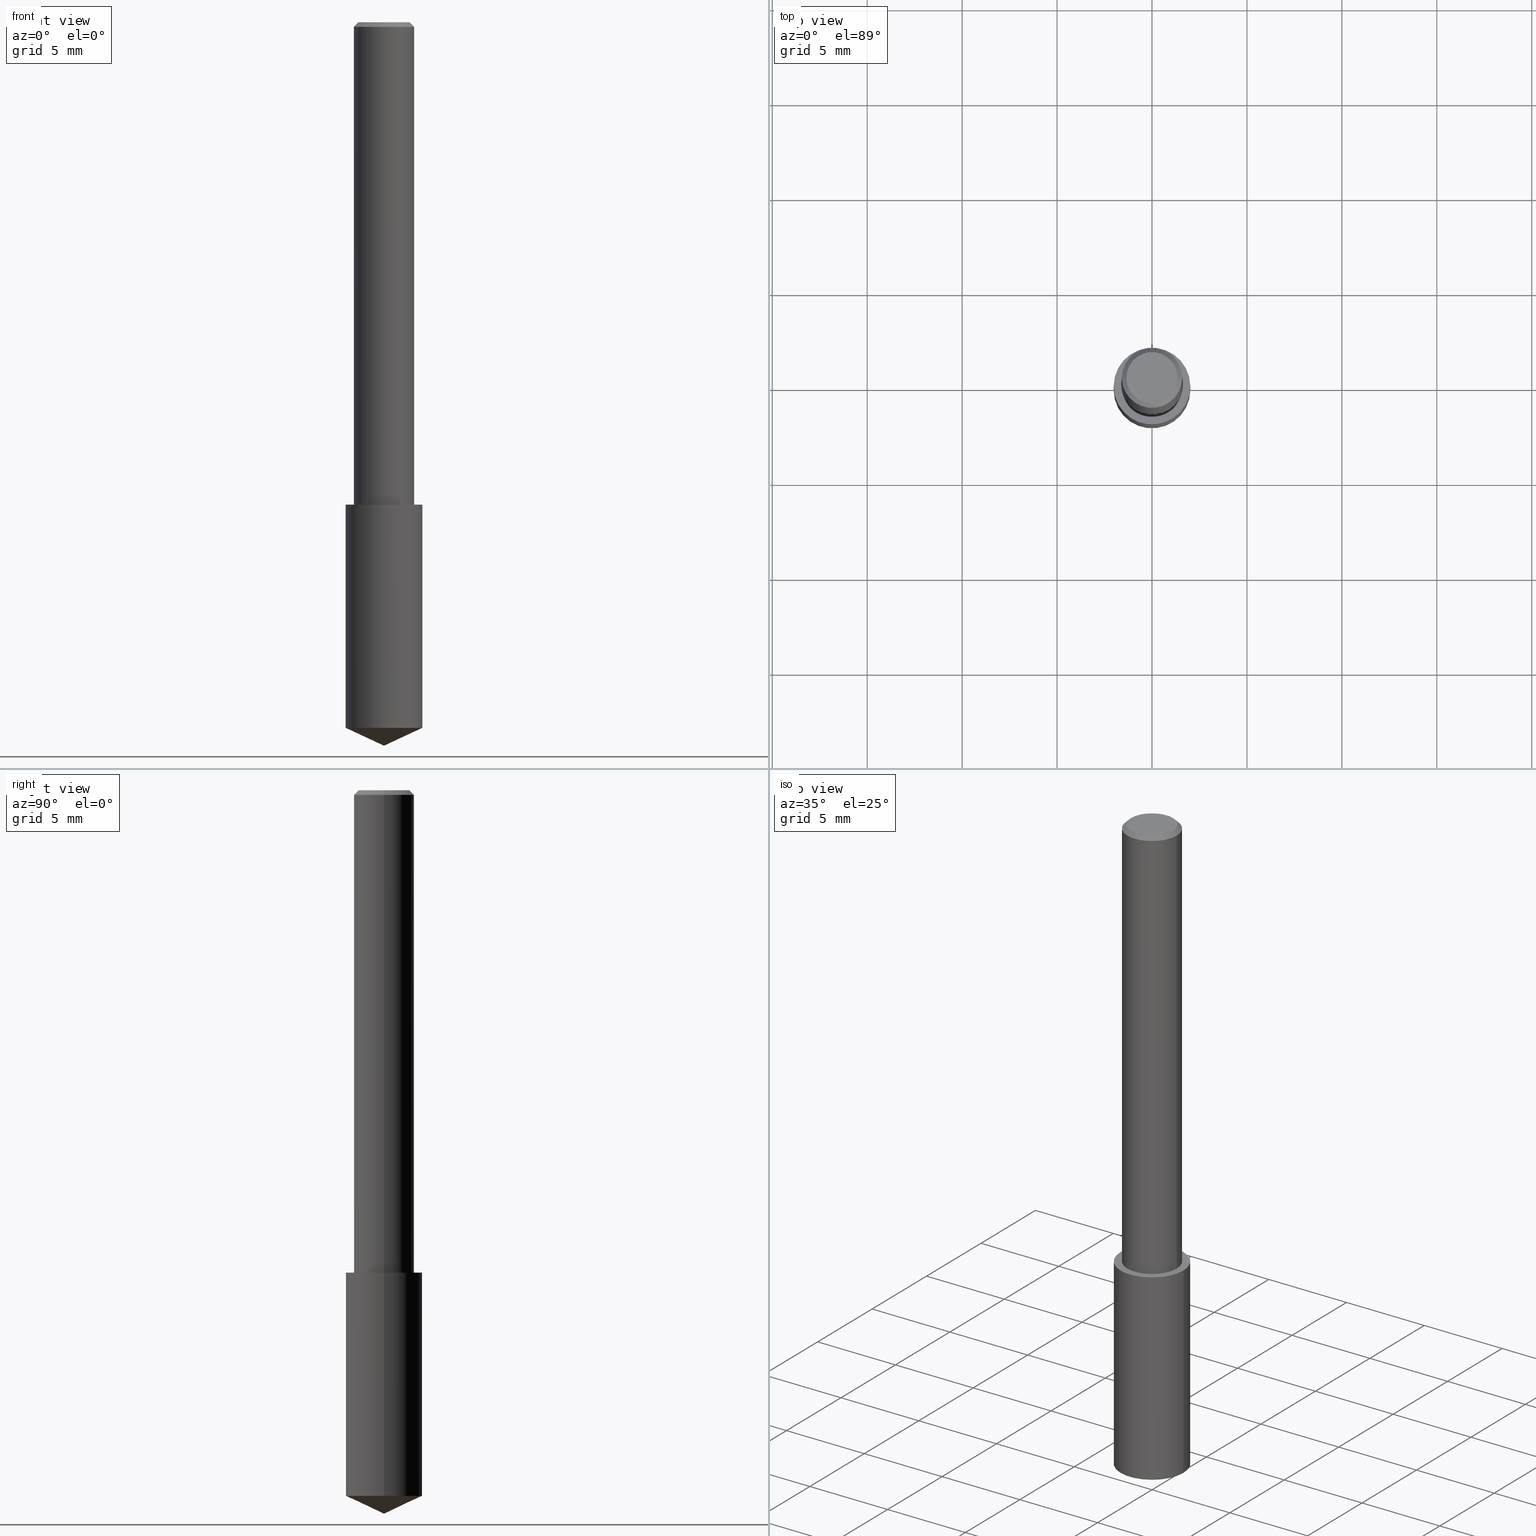
[diagram: canonical four-view strip — front | top / right | iso, engineering-drawing reading convention]
A machine part, canonical four-view strip (front | top / right | iso — engineering-drawing reading convention). The complete STEP part file that produces these views, byte-faithful:
ISO-10303-21;
HEADER;
FILE_DESCRIPTION (( 'STEP AP203' ),
    '1' );
FILE_NAME ('06097.STEP',
    '2024-04-30T18:20:19',
    ( '' ),
    ( '' ),
    'SwSTEP 2.0',
    'SolidWorks 2023',
    '' );
FILE_SCHEMA (( 'CONFIG_CONTROL_DESIGN' ));
ENDSEC;

DATA;
#1 = VERTEX_POINT ( 'NONE', #251 ) ;
#2 = APPROVAL ( #23, 'UNSPECIFIED' ) ;
#3 =( LENGTH_UNIT ( ) NAMED_UNIT ( * ) SI_UNIT ( $, .METRE. ) );
#4 = VERTEX_POINT ( 'NONE', #175 ) ;
#5 = CONICAL_SURFACE ( 'NONE', #87, 84.42940631927402251, 1.134464013796314452 ) ;
#6 = CARTESIAN_POINT ( 'NONE',  ( 3.668203209277704895E-29, -5.237222008264718177E-15, -1.500000000000000222 ) ) ;
#7 = EDGE_CURVE ( 'NONE', #297, #228, #116, .T. ) ;
#8 = CARTESIAN_POINT ( 'NONE',  ( 0.05312499999999999861, -4.129888592719939842E-16, 3.061617000609493422E-21 ) ) ;
#9 = APPROVAL_ROLE ( '' ) ;
#10 = DIRECTION ( 'NONE',  ( -2.445468806185136597E-29, 3.491481338843145583E-15, 1.000000000000000000 ) ) ;
#11 = VECTOR ( 'NONE', #110, 39.37007874015748854 ) ;
#12 = APPROVAL_STATUS ( 'not_yet_approved' ) ;
#13 = DIRECTION ( 'NONE',  ( -0.7071067811865453523, 2.468850131082234184E-15, -0.7071067811865496822 ) ) ;
#14 = DIRECTION ( 'NONE',  ( 1.000000000000000000, -6.982962677686266711E-15, 4.876176628004948512E-29 ) ) ;
#15 = PERSON_AND_ORGANIZATION ( #174, #107 ) ;
#16 = EDGE_CURVE ( 'NONE', #237, #63, #312, .T. ) ;
#17 = SHAPE_DEFINITION_REPRESENTATION ( #319, #167 ) ;
#18 = CARTESIAN_POINT ( 'NONE',  ( 2.445468806185137438E-29, -3.491481338843146371E-15, -1.000000000000000222 ) ) ;
#19 = PERSON_AND_ORGANIZATION ( #174, #107 ) ;
#20 = AXIS2_PLACEMENT_3D ( 'NONE', #278, #338, #170 ) ;
#21 = ORIENTED_EDGE ( 'NONE', *, *, #183, .F. ) ;
#22 = EDGE_CURVE ( 'NONE', #4, #314, #318, .T. ) ;
#23 = APPROVAL_STATUS ( 'not_yet_approved' ) ;
#24 = CIRCLE ( 'NONE', #236, 0.07950000000000000122 ) ;
#25 = EDGE_LOOP ( 'NONE', ( #36, #115 ) ) ;
#26 = DIRECTION ( 'NONE',  ( 1.000000000000000000, -6.982962677686265922E-15, 0.000000000000000000 ) ) ;
#27 = ORIENTED_EDGE ( 'NONE', *, *, #325, .F. ) ;
#28 = CC_DESIGN_PERSON_AND_ORGANIZATION_ASSIGNMENT ( #44, #310, ( #295 ) ) ;
#29 = EDGE_LOOP ( 'NONE', ( #46, #225, #101, #257 ) ) ;
#30 = AXIS2_PLACEMENT_3D ( 'NONE', #62, #94, #126 ) ;
#31 = DIRECTION ( 'NONE',  ( -1.000000000000000000, 6.982962677686265922E-15, -4.876176775795935793E-29 ) ) ;
#32 = CALENDAR_DATE ( 2024, 30, 4 ) ;
#33 = CARTESIAN_POINT ( 'NONE',  ( -0.07950000000000000122, -4.542906226650117336E-15, -1.462928541176677699 ) ) ;
#34 = AXIS2_PLACEMENT_3D ( 'NONE', #109, #213, #320 ) ;
#35 = VECTOR ( 'NONE', #75, 39.37007874015748143 ) ;
#36 = ORIENTED_EDGE ( 'NONE', *, *, #83, .T. ) ;
#37 = DIRECTION ( 'NONE',  ( -2.445468806185136597E-29, 3.491481338843145583E-15, 1.000000000000000000 ) ) ;
#38 = ORIENTED_EDGE ( 'NONE', *, *, #22, .T. ) ;
#39 = CALENDAR_DATE ( 2024, 30, 4 ) ;
#40 = DIRECTION ( 'NONE',  ( -2.445468806185136597E-29, 3.491481338843145583E-15, 1.000000000000000000 ) ) ;
#41 = VECTOR ( 'NONE', #299, 39.37007874015748143 ) ;
#42 = CC_DESIGN_APPROVAL ( #2, ( #216 ) ) ;
#43 = FACE_OUTER_BOUND ( 'NONE', #233, .T. ) ;
#44 = PERSON_AND_ORGANIZATION ( #174, #107 ) ;
#45 = CYLINDRICAL_SURFACE ( 'NONE', #260, 0.07950000000000000122 ) ;
#46 = ORIENTED_EDGE ( 'NONE', *, *, #188, .F. ) ;
#47 = CIRCLE ( 'NONE', #246, 0.06250000000000012490 ) ;
#48 = EDGE_CURVE ( 'NONE', #297, #237, #81, .T. ) ;
#49 = EDGE_LOOP ( 'NONE', ( #258, #210, #163, #156 ) ) ;
#50 =( NAMED_UNIT ( * ) PLANE_ANGLE_UNIT ( ) SI_UNIT ( $, .RADIAN. ) );
#51 = AXIS2_PLACEMENT_3D ( 'NONE', #64, #171, #281 ) ;
#52 = CARTESIAN_POINT ( 'NONE',  ( 2.292627005798580623E-31, -3.273263755165470184E-17, -0.009375000000000060368 ) ) ;
#53 = ORIENTED_EDGE ( 'NONE', *, *, #102, .F. ) ;
#54 = EDGE_CURVE ( 'NONE', #222, #149, #157, .T. ) ;
#55 = AXIS2_PLACEMENT_3D ( 'NONE', #328, #332, #89 ) ;
#56 = CC_DESIGN_PERSON_AND_ORGANIZATION_ASSIGNMENT ( #298, #57, ( #216 ) ) ;
#57 = PERSON_AND_ORGANIZATION_ROLE ( 'classification_officer' ) ;
#58 = PERSON_AND_ORGANIZATION ( #174, #107 ) ;
#59 = EDGE_CURVE ( 'NONE', #314, #4, #326, .T. ) ;
#60 = DIRECTION ( 'NONE',  ( 1.000000000000000000, -6.982962677686265922E-15, 0.000000000000000000 ) ) ;
#61 = DIRECTION ( 'NONE',  ( -2.445468806185136597E-29, 3.491481338843145583E-15, 1.000000000000000000 ) ) ;
#62 = CARTESIAN_POINT ( 'NONE',  ( 0.000000000000000000, 0.000000000000000000, 0.000000000000000000 ) ) ;
#63 = VERTEX_POINT ( 'NONE', #230 ) ;
#64 = CARTESIAN_POINT ( 'NONE',  ( 2.292627005798580623E-31, -3.273263755165470184E-17, -0.009375000000000060368 ) ) ;
#65 = EDGE_CURVE ( 'NONE', #71, #235, #165, .T. ) ;
#66 = DIRECTION ( 'NONE',  ( 1.000000000000000000, -6.982962677686266711E-15, 0.000000000000000000 ) ) ;
#67 = AXIS2_PLACEMENT_3D ( 'NONE', #103, #190, #294 ) ;
#68 = AXIS2_PLACEMENT_3D ( 'NONE', #138, #267, #137 ) ;
#69 = CARTESIAN_POINT ( 'NONE',  ( -0.06250000000000012490, -1.318017778347335489E-15, -1.000000000000000222 ) ) ;
#70 = CARTESIAN_POINT ( 'NONE',  ( 0.07950000000000000122, -4.046626871719204622E-15, -1.000000000000000222 ) ) ;
#71 = VERTEX_POINT ( 'NONE', #117 ) ;
#72 = CC_DESIGN_APPROVAL ( #95, ( #88 ) ) ;
#73 = ORIENTED_EDGE ( 'NONE', *, *, #325, .T. ) ;
#74 = FACE_OUTER_BOUND ( 'NONE', #127, .T. ) ;
#75 = DIRECTION ( 'NONE',  ( 0.7071067811865453523, -7.319954787623248157E-15, -0.7071067811865496822 ) ) ;
#76 = ORIENTED_EDGE ( 'NONE', *, *, #54, .F. ) ;
#77 = ADVANCED_FACE ( 'NONE', ( #280 ), #122, .F. ) ;
#78 = CARTESIAN_POINT ( 'NONE',  ( 0.06250000000000000000, -4.615137624123753937E-16, -0.009375000000000060368 ) ) ;
#79 = ADVANCED_FACE ( 'NONE', ( #43 ), #45, .T. ) ;
#80 = CC_DESIGN_PERSON_AND_ORGANIZATION_ASSIGNMENT ( #217, #84, ( #88 ) ) ;
#81 = CIRCLE ( 'NONE', #98, 0.07950000000000000122 ) ;
#82 = CARTESIAN_POINT ( 'NONE',  ( -0.06250000000000006939, 4.440892098500631092E-16, -3.074334431409319267E-30 ) ) ;
#83 = EDGE_CURVE ( 'NONE', #63, #228, #106, .T. ) ;
#84 = PERSON_AND_ORGANIZATION_ROLE ( 'creator' ) ;
#85 = FACE_OUTER_BOUND ( 'NONE', #49, .T. ) ;
#86 = DIRECTION ( 'NONE',  ( -2.445468806185136597E-29, 3.491481338843145583E-15, 1.000000000000000000 ) ) ;
#87 = AXIS2_PLACEMENT_3D ( 'NONE', #144, #333, #66 ) ;
#88 = PRODUCT_DEFINITION_FORMATION_WITH_SPECIFIED_SOURCE ( 'ANY', '', #295, .NOT_KNOWN. ) ;
#89 = DIRECTION ( 'NONE',  ( 1.000000000000000000, -6.982962677686264344E-15, 0.000000000000000000 ) ) ;
#90 = DIRECTION ( 'NONE',  ( 1.000000000000000000, -6.982962677686264344E-15, 0.000000000000000000 ) ) ;
#91 = EDGE_CURVE ( 'NONE', #235, #71, #211, .T. ) ;
#92 = DIRECTION ( 'NONE',  ( -2.445468806185136597E-29, 3.491481338843145583E-15, 1.000000000000000000 ) ) ;
#93 = DIRECTION ( 'NONE',  ( -2.445468806185136877E-29, 3.491481338843145188E-15, 1.000000000000000000 ) ) ;
#94 = DIRECTION ( 'NONE',  ( 0.000000000000000000, 0.000000000000000000, 1.000000000000000000 ) ) ;
#95 = APPROVAL ( #12, 'UNSPECIFIED' ) ;
#96 = APPROVAL_DATE_TIME ( #234, #2 ) ;
#97 = LINE ( 'NONE', #284, #197 ) ;
#98 = AXIS2_PLACEMENT_3D ( 'NONE', #146, #92, #219 ) ;
#99 = EDGE_LOOP ( 'NONE', ( #286, #180 ) ) ;
#100 = MANIFOLD_SOLID_BREP ( 'Body-Move/Copy2[1]', #215 ) ;
#101 = ORIENTED_EDGE ( 'NONE', *, *, #120, .T. ) ;
#102 = EDGE_CURVE ( 'NONE', #71, #314, #97, .T. ) ;
#103 = CARTESIAN_POINT ( 'NONE',  ( 2.445468806185137438E-29, -3.491481338843146371E-15, -1.000000000000000222 ) ) ;
#104 = EDGE_LOOP ( 'NONE', ( #131, #241, #261 ) ) ;
#105 = DIRECTION ( 'NONE',  ( -1.000000000000000000, 6.982962677686266711E-15, 0.000000000000000000 ) ) ;
#106 = CIRCLE ( 'NONE', #273, 0.07950000000000000122 ) ;
#107 = ORGANIZATION ( 'UNSPECIFIED', 'UNSPECIFIED', '' ) ;
#108 = ADVANCED_FACE ( 'NONE', ( #226 ), #119, .T. ) ;
#109 = CARTESIAN_POINT ( 'NONE',  ( 2.292627005798580623E-31, -3.273263755165470184E-17, -0.009375000000000060368 ) ) ;
#110 = DIRECTION ( 'NONE',  ( -0.9063077870366499367, 7.915267918739013053E-15, 0.4226182617406991082 ) ) ;
#111 = DIRECTION ( 'NONE',  ( 0.9063077870366499367, -4.853149677051380368E-15, 0.4226182617406991082 ) ) ;
#112 = DATE_TIME_ROLE ( 'creation_date' ) ;
#113 = CARTESIAN_POINT ( 'NONE',  ( 0.06250000000000012490, -3.927916506198539224E-15, -1.000000000000000222 ) ) ;
#114 = CALENDAR_DATE ( 2024, 30, 4 ) ;
#115 = ORIENTED_EDGE ( 'NONE', *, *, #183, .T. ) ;
#116 = LINE ( 'NONE', #207, #308 ) ;
#117 = CARTESIAN_POINT ( 'NONE',  ( -0.05312499999999999861, 3.873362110279099094E-16, 3.061616995216862494E-21 ) ) ;
#118 = APPROVAL_ROLE ( '' ) ;
#119 = CONICAL_SURFACE ( 'NONE', #313, 84.42940631927402251, 1.134464013796314452 ) ;
#120 = EDGE_CURVE ( 'NONE', #222, #4, #252, .T. ) ;
#121 = FACE_OUTER_BOUND ( 'NONE', #29, .T. ) ;
#122 = PLANE ( 'NONE',  #20 ) ;
#123 = ADVANCED_FACE ( 'NONE', ( #121 ), #330, .T. ) ;
#124 = CARTESIAN_POINT ( 'NONE',  ( 2.445468806185137438E-29, -3.491481338843146371E-15, -1.000000000000000222 ) ) ;
#125 = PERSON_AND_ORGANIZATION_ROLE ( 'creator' ) ;
#126 = DIRECTION ( 'NONE',  ( 1.000000000000000000, 0.000000000000000000, 0.000000000000000000 ) ) ;
#127 = EDGE_LOOP ( 'NONE', ( #27, #189, #169, #300 ) ) ;
#128 = CALENDAR_DATE ( 2024, 30, 4 ) ;
#129 = ORIENTED_EDGE ( 'NONE', *, *, #48, .T. ) ;
#130 = AXIS2_PLACEMENT_3D ( 'NONE', #52, #134, #105 ) ;
#131 = ORIENTED_EDGE ( 'NONE', *, *, #316, .F. ) ;
#132 = CC_DESIGN_DATE_AND_TIME_ASSIGNMENT ( #147, #112, ( #259 ) ) ;
#133 = ORIENTED_EDGE ( 'NONE', *, *, #83, .F. ) ;
#134 = DIRECTION ( 'NONE',  ( 2.445468806185136597E-29, -3.491481338843145583E-15, -1.000000000000000000 ) ) ;
#135 = VECTOR ( 'NONE', #218, 39.37007874015748143 ) ;
#136 = CARTESIAN_POINT ( 'NONE',  ( 3.668203209277704895E-29, -5.237222008264718177E-15, -1.500000000000000222 ) ) ;
#137 = DIRECTION ( 'NONE',  ( 1.000000000000000000, -6.982962677686266711E-15, 4.876176775795935793E-29 ) ) ;
#138 = CARTESIAN_POINT ( 'NONE',  ( 0.000000000000000000, 0.000000000000000000, 0.000000000000000000 ) ) ;
#139 = ADVANCED_FACE ( 'NONE', ( #148 ), #5, .T. ) ;
#140 = VECTOR ( 'NONE', #111, 39.37007874015748854 ) ;
#141 = CARTESIAN_POINT ( 'NONE',  ( 2.445468806185136877E-29, -3.491481338843145977E-15, -1.000000000000000222 ) ) ;
#142 = APPROVAL ( #250, 'UNSPECIFIED' ) ;
#143 = ADVANCED_FACE ( 'NONE', ( #283 ), #150, .F. ) ;
#144 = CARTESIAN_POINT ( 'NONE',  ( -9.261009624683002666E-28, 1.322226732217803884E-13, 37.87007874015748143 ) ) ;
#145 = APPLICATION_PROTOCOL_DEFINITION ( 'international standard', 'config_control_design', 1994, #306 ) ;
#146 = CARTESIAN_POINT ( 'NONE',  ( 3.577546113125493267E-29, -5.107787701579397091E-15, -1.462928541176677699 ) ) ;
#147 = DATE_AND_TIME ( #39, #263 ) ;
#148 = FACE_OUTER_BOUND ( 'NONE', #200, .T. ) ;
#149 = VERTEX_POINT ( 'NONE', #69 ) ;
#150 = PLANE ( 'NONE',  #155 ) ;
#151 = CARTESIAN_POINT ( 'NONE',  ( 0.06250000000000006939, -4.364351673553921624E-16, 3.047610484872463374E-30 ) ) ;
#152 = APPLICATION_PROTOCOL_DEFINITION ( 'international standard', 'config_control_design', 1994, #253 ) ;
#153 = ORIENTED_EDGE ( 'NONE', *, *, #91, .F. ) ;
#154 = ORIENTED_EDGE ( 'NONE', *, *, #7, .F. ) ;
#155 = AXIS2_PLACEMENT_3D ( 'NONE', #335, #249, #255 ) ;
#156 = ORIENTED_EDGE ( 'NONE', *, *, #120, .F. ) ;
#157 = CIRCLE ( 'NONE', #55, 0.06250000000000012490 ) ;
#158 = EDGE_CURVE ( 'NONE', #149, #222, #47, .T. ) ;
#159 = CYLINDRICAL_SURFACE ( 'NONE', #67, 0.07950000000000000122 ) ;
#160 = LINE ( 'NONE', #78, #35 ) ;
#161 = AXIS2_PLACEMENT_3D ( 'NONE', #305, #309, #168 ) ;
#162 = LOCAL_TIME ( 14, 20, 19.00000000000000000, #227 ) ;
#163 = ORIENTED_EDGE ( 'NONE', *, *, #22, .F. ) ;
#164 = PERSON_AND_ORGANIZATION ( #174, #107 ) ;
#165 = CIRCLE ( 'NONE', #323, 0.05312499999999999861 ) ;
#166 = APPROVAL_DATE_TIME ( #247, #95 ) ;
#167 = ADVANCED_BREP_SHAPE_REPRESENTATION ( '06097', ( #100, #329, #30 ), #212 ) ;
#168 = DIRECTION ( 'NONE',  ( 1.000000000000000000, -6.982962677686266711E-15, 4.876176775795935793E-29 ) ) ;
#169 = ORIENTED_EDGE ( 'NONE', *, *, #102, .T. ) ;
#170 = DIRECTION ( 'NONE',  ( -1.000000000000000000, 6.982962677686265922E-15, -4.876176775795935793E-29 ) ) ;
#171 = DIRECTION ( 'NONE',  ( -2.445468806185136597E-29, 3.491481338843145583E-15, 1.000000000000000000 ) ) ;
#172 = CARTESIAN_POINT ( 'NONE',  ( -7.487088864773345706E-50, 1.068957861474247695E-35, 3.061616997868395197E-21 ) ) ;
#173 = CONICAL_SURFACE ( 'NONE', #34, 0.06250000000000000000, 0.7853981633974452814 ) ;
#174 = PERSON ( 'UNSPECIFIED', 'UNSPECIFIED', 'UNSPECIFIED', ('UNSPECIFIED'), ('UNSPECIFIED'), ('UNSPECIFIED') ) ;
#175 = CARTESIAN_POINT ( 'NONE',  ( 0.06250000000000000000, -4.691678049070463404E-16, -0.009375000000000060368 ) ) ;
#176 = CARTESIAN_POINT ( 'NONE',  ( -7.487088864773345706E-50, 1.068957861474247695E-35, 3.061616997868395197E-21 ) ) ;
#177 = CARTESIAN_POINT ( 'NONE',  ( 2.292627005798580623E-31, -3.273263755165470184E-17, -0.009375000000000060368 ) ) ;
#178 = PERSON_AND_ORGANIZATION ( #174, #107 ) ;
#179 = ORIENTED_EDGE ( 'NONE', *, *, #158, .F. ) ;
#180 = ORIENTED_EDGE ( 'NONE', *, *, #91, .T. ) ;
#181 = AXIS2_PLACEMENT_3D ( 'NONE', #172, #254, #223 ) ;
#182 = LOCAL_TIME ( 14, 20, 19.00000000000000000, #270 ) ;
#183 = EDGE_CURVE ( 'NONE', #228, #63, #220, .T. ) ;
#184 = LENGTH_MEASURE_WITH_UNIT ( LENGTH_MEASURE( 0.02539999999999999897 ), #3 );
#185 = CC_DESIGN_PERSON_AND_ORGANIZATION_ASSIGNMENT ( #164, #214, ( #88 ) ) ;
#186 = PRODUCT_RELATED_PRODUCT_CATEGORY ( 'detail', '', ( #295 ) ) ;
#187 = DESIGN_CONTEXT ( 'detailed design', #306, 'design' ) ;
#188 = EDGE_CURVE ( 'NONE', #149, #314, #322, .T. ) ;
#189 = ORIENTED_EDGE ( 'NONE', *, *, #65, .F. ) ;
#190 = DIRECTION ( 'NONE',  ( -2.445468806185136597E-29, 3.491481338843145583E-15, 1.000000000000000000 ) ) ;
#191 = DIRECTION ( 'NONE',  ( -2.445468806185136597E-29, 3.491481338843145583E-15, 1.000000000000000000 ) ) ;
#192 = CYLINDRICAL_SURFACE ( 'NONE', #68, 0.06250000000000006939 ) ;
#193 = CONICAL_SURFACE ( 'NONE', #130, 0.06250000000000000000, 0.7853981633974452814 ) ;
#194 = LINE ( 'NONE', #136, #11 ) ;
#195 = CC_DESIGN_DATE_AND_TIME_ASSIGNMENT ( #276, #289, ( #216 ) ) ;
#196 = CARTESIAN_POINT ( 'NONE',  ( -3.743544432386672853E-50, 5.344789307371238476E-36, 1.530808498934197599E-21 ) ) ;
#197 = VECTOR ( 'NONE', #13, 39.37007874015748143 ) ;
#198 = DIRECTION ( 'NONE',  ( 1.000000000000000000, -6.982962677686266711E-15, 0.000000000000000000 ) ) ;
#199 = CARTESIAN_POINT ( 'NONE',  ( -9.261009624683002666E-28, 1.322226732217803884E-13, 37.87007874015748143 ) ) ;
#200 = EDGE_LOOP ( 'NONE', ( #290, #206, #307 ) ) ;
#201 = CARTESIAN_POINT ( 'NONE',  ( 2.445468806185136877E-29, -3.491481338843145977E-15, -1.000000000000000222 ) ) ;
#202 = AXIS2_PLACEMENT_3D ( 'NONE', #177, #304, #198 ) ;
#203 = DIRECTION ( 'NONE',  ( 1.000000000000000000, -6.982962677686266711E-15, 0.000000000000000000 ) ) ;
#204 = CALENDAR_DATE ( 2024, 30, 4 ) ;
#205 = CC_DESIGN_SECURITY_CLASSIFICATION ( #216, ( #88 ) ) ;
#206 = ORIENTED_EDGE ( 'NONE', *, *, #316, .T. ) ;
#207 = CARTESIAN_POINT ( 'NONE',  ( -0.07950000000000000122, -2.926599863913867011E-15, -1.000000000000000222 ) ) ;
#208 = EDGE_CURVE ( 'NONE', #1, #297, #194, .T. ) ;
#209 = CC_DESIGN_APPROVAL ( #142, ( #259 ) ) ;
#210 = ORIENTED_EDGE ( 'NONE', *, *, #188, .T. ) ;
#211 = CIRCLE ( 'NONE', #181, 0.05312499999999999861 ) ;
#212 =( GEOMETRIC_REPRESENTATION_CONTEXT ( 3 ) GLOBAL_UNCERTAINTY_ASSIGNED_CONTEXT ( ( #275 ) ) GLOBAL_UNIT_ASSIGNED_CONTEXT ( ( #292, #50, #238 ) ) REPRESENTATION_CONTEXT ( 'NONE', 'WORKASPACE' ) );
#213 = DIRECTION ( 'NONE',  ( 2.445468806185136597E-29, -3.491481338843145583E-15, -1.000000000000000000 ) ) ;
#214 = PERSON_AND_ORGANIZATION_ROLE ( 'design_supplier' ) ;
#215 = CLOSED_SHELL ( 'NONE', ( #240, #108, #139, #79, #77 ) ) ;
#216 = SECURITY_CLASSIFICATION ( '', '', #277 ) ;
#217 = PERSON_AND_ORGANIZATION ( #174, #107 ) ;
#218 = DIRECTION ( 'NONE',  ( -2.445468806185136877E-29, 3.491481338843145188E-15, 1.000000000000000000 ) ) ;
#219 = DIRECTION ( 'NONE',  ( 1.000000000000000000, -6.982962677686265922E-15, 0.000000000000000000 ) ) ;
#220 = CIRCLE ( 'NONE', #293, 0.07950000000000000122 ) ;
#221 = DIRECTION ( 'NONE',  ( -2.445468806185136597E-29, 3.491481338843145583E-15, 1.000000000000000000 ) ) ;
#222 = VERTEX_POINT ( 'NONE', #113 ) ;
#223 = DIRECTION ( 'NONE',  ( 1.000000000000000000, -6.982962677686266711E-15, 4.876176628004948512E-29 ) ) ;
#224 = MECHANICAL_CONTEXT ( 'NONE', #253, 'mechanical' ) ;
#225 = ORIENTED_EDGE ( 'NONE', *, *, #158, .T. ) ;
#226 = FACE_OUTER_BOUND ( 'NONE', #104, .T. ) ;
#227 = COORDINATED_UNIVERSAL_TIME_OFFSET ( 5, 0, .BEHIND. ) ;
#228 = VERTEX_POINT ( 'NONE', #321 ) ;
#229 = CLOSED_SHELL ( 'NONE', ( #285, #302, #143, #123, #265, #291 ) ) ;
#230 = CARTESIAN_POINT ( 'NONE',  ( 0.07950000000000000122, -4.046626871719203833E-15, -1.000000000000000222 ) ) ;
#231 = COORDINATED_UNIVERSAL_TIME_OFFSET ( 5, 0, .BEHIND. ) ;
#232 = LOCAL_TIME ( 14, 20, 19.00000000000000000, #324 ) ;
#233 = EDGE_LOOP ( 'NONE', ( #154, #129, #317, #21 ) ) ;
#234 = DATE_AND_TIME ( #128, #296 ) ;
#235 = VERTEX_POINT ( 'NONE', #8 ) ;
#236 = AXIS2_PLACEMENT_3D ( 'NONE', #339, #191, #26 ) ;
#237 = VERTEX_POINT ( 'NONE', #262 ) ;
#238 =( NAMED_UNIT ( * ) SI_UNIT ( $, .STERADIAN. ) SOLID_ANGLE_UNIT ( ) );
#239 = CC_DESIGN_PERSON_AND_ORGANIZATION_ASSIGNMENT ( #19, #125, ( #259 ) ) ;
#240 = ADVANCED_FACE ( 'NONE', ( #315 ), #159, .T. ) ;
#241 = ORIENTED_EDGE ( 'NONE', *, *, #208, .T. ) ;
#242 = FACE_OUTER_BOUND ( 'NONE', #336, .T. ) ;
#243 = LINE ( 'NONE', #6, #140 ) ;
#244 = CARTESIAN_POINT ( 'NONE',  ( -0.06250000000000000000, -1.318017778347336672E-15, -0.009375000000000060368 ) ) ;
#245 = PLANE ( 'NONE',  #282 ) ;
#246 = AXIS2_PLACEMENT_3D ( 'NONE', #18, #10, #90 ) ;
#247 = DATE_AND_TIME ( #114, #232 ) ;
#248 = DIRECTION ( 'NONE',  ( -2.445468806185136877E-29, 3.491481338843145188E-15, 1.000000000000000000 ) ) ;
#249 = DIRECTION ( 'NONE',  ( -2.438088387897960049E-29, 3.491481338843145188E-15, 1.000000000000000000 ) ) ;
#250 = APPROVAL_STATUS ( 'not_yet_approved' ) ;
#251 = CARTESIAN_POINT ( 'NONE',  ( 3.668203209277704895E-29, -5.237222008264718177E-15, -1.500000000000000222 ) ) ;
#252 = LINE ( 'NONE', #151, #287 ) ;
#253 = APPLICATION_CONTEXT ( 'configuration controlled 3d designs of mechanical parts and assemblies' ) ;
#254 = DIRECTION ( 'NONE',  ( -2.445468806185136597E-29, 3.491481338843145583E-15, 1.000000000000000000 ) ) ;
#255 = DIRECTION ( 'NONE',  ( 1.000000000000000000, -6.982962677686265922E-15, 4.876176775795935793E-29 ) ) ;
#256 = DATE_AND_TIME ( #204, #162 ) ;
#257 = ORIENTED_EDGE ( 'NONE', *, *, #59, .F. ) ;
#258 = ORIENTED_EDGE ( 'NONE', *, *, #54, .T. ) ;
#259 = PRODUCT_DEFINITION ( 'UNKNOWN', '', #88, #187 ) ;
#260 = AXIS2_PLACEMENT_3D ( 'NONE', #124, #40, #303 ) ;
#261 = ORIENTED_EDGE ( 'NONE', *, *, #340, .F. ) ;
#262 = CARTESIAN_POINT ( 'NONE',  ( 0.07950000000000000122, -5.662933234455454158E-15, -1.462928541176677699 ) ) ;
#263 = LOCAL_TIME ( 14, 20, 19.00000000000000000, #231 ) ;
#264 = ORIENTED_EDGE ( 'NONE', *, *, #340, .T. ) ;
#265 = ADVANCED_FACE ( 'NONE', ( #74 ), #193, .T. ) ;
#266 = DIMENSIONAL_EXPONENTS ( 1.000000000000000000, 0.000000000000000000, 0.000000000000000000, 0.000000000000000000, 0.000000000000000000, 0.000000000000000000, 0.000000000000000000 ) ;
#267 = DIRECTION ( 'NONE',  ( -2.445468806185136597E-29, 3.491481338843145583E-15, 1.000000000000000000 ) ) ;
#268 = APPROVAL_PERSON_ORGANIZATION ( #178, #2, #334 ) ;
#269 = FACE_OUTER_BOUND ( 'NONE', #99, .T. ) ;
#270 = COORDINATED_UNIVERSAL_TIME_OFFSET ( 5, 0, .BEHIND. ) ;
#271 = DIRECTION ( 'NONE',  ( 1.000000000000000000, -6.982962677686265922E-15, 0.000000000000000000 ) ) ;
#272 = DIRECTION ( 'NONE',  ( 2.438088387897960049E-29, -3.491481338843145188E-15, -1.000000000000000000 ) ) ;
#273 = AXIS2_PLACEMENT_3D ( 'NONE', #201, #37, #60 ) ;
#275 = UNCERTAINTY_MEASURE_WITH_UNIT (LENGTH_MEASURE( 1.000000000000000082E-05 ), #292, 'distance_accuracy_value', 'NONE');
#274 = APPROVAL_PERSON_ORGANIZATION ( #15, #142, #118 ) ;
#276 = DATE_AND_TIME ( #32, #182 ) ;
#277 = SECURITY_CLASSIFICATION_LEVEL ( 'unclassified' ) ;
#278 = CARTESIAN_POINT ( 'NONE',  ( 3.645241924478826794E-29, -1.773337946601470975E-15, -1.000000000000000222 ) ) ;
#279 = COORDINATED_UNIVERSAL_TIME_OFFSET ( 5, 0, .BEHIND. ) ;
#280 = FACE_OUTER_BOUND ( 'NONE', #25, .T. ) ;
#281 = DIRECTION ( 'NONE',  ( 1.000000000000000000, -6.982962677686266711E-15, 0.000000000000000000 ) ) ;
#282 = AXIS2_PLACEMENT_3D ( 'NONE', #196, #272, #31 ) ;
#283 = FACE_OUTER_BOUND ( 'NONE', #311, .T. ) ;
#284 = CARTESIAN_POINT ( 'NONE',  ( -0.06250000000000000000, 4.037025298037369984E-16, -0.009375000000000060368 ) ) ;
#285 = ADVANCED_FACE ( 'NONE', ( #242 ), #173, .T. ) ;
#286 = ORIENTED_EDGE ( 'NONE', *, *, #65, .T. ) ;
#287 = VECTOR ( 'NONE', #93, 39.37007874015748143 ) ;
#288 = ORIENTED_EDGE ( 'NONE', *, *, #16, .F. ) ;
#289 = DATE_TIME_ROLE ( 'classification_date' ) ;
#290 = ORIENTED_EDGE ( 'NONE', *, *, #208, .F. ) ;
#291 = ADVANCED_FACE ( 'NONE', ( #269 ), #245, .F. ) ;
#292 =( CONVERSION_BASED_UNIT ( 'INCH', #184 ) LENGTH_UNIT ( ) NAMED_UNIT ( #266 ) );
#293 = AXIS2_PLACEMENT_3D ( 'NONE', #141, #86, #271 ) ;
#294 = DIRECTION ( 'NONE',  ( 1.000000000000000000, -6.982962677686265922E-15, 0.000000000000000000 ) ) ;
#295 = PRODUCT ( '06097', '06097', '', ( #224 ) ) ;
#296 = LOCAL_TIME ( 14, 20, 19.00000000000000000, #279 ) ;
#297 = VERTEX_POINT ( 'NONE', #33 ) ;
#298 = PERSON_AND_ORGANIZATION ( #174, #107 ) ;
#299 = DIRECTION ( 'NONE',  ( -2.445468806185136877E-29, 3.491481338843145188E-15, 1.000000000000000000 ) ) ;
#300 = ORIENTED_EDGE ( 'NONE', *, *, #59, .T. ) ;
#301 = ORIENTED_EDGE ( 'NONE', *, *, #7, .T. ) ;
#302 = ADVANCED_FACE ( 'NONE', ( #85 ), #192, .T. ) ;
#303 = DIRECTION ( 'NONE',  ( 1.000000000000000000, -6.982962677686265922E-15, 0.000000000000000000 ) ) ;
#304 = DIRECTION ( 'NONE',  ( -2.445468806185136597E-29, 3.491481338843145583E-15, 1.000000000000000000 ) ) ;
#305 = CARTESIAN_POINT ( 'NONE',  ( 0.000000000000000000, 0.000000000000000000, 0.000000000000000000 ) ) ;
#306 = APPLICATION_CONTEXT ( 'configuration controlled 3d designs of mechanical parts and assemblies' ) ;
#307 = ORIENTED_EDGE ( 'NONE', *, *, #48, .F. ) ;
#308 = VECTOR ( 'NONE', #248, 39.37007874015748143 ) ;
#309 = DIRECTION ( 'NONE',  ( -2.445468806185136597E-29, 3.491481338843145583E-15, 1.000000000000000000 ) ) ;
#310 = PERSON_AND_ORGANIZATION_ROLE ( 'design_owner' ) ;
#311 = EDGE_LOOP ( 'NONE', ( #76, #179 ) ) ;
#312 = LINE ( 'NONE', #70, #135 ) ;
#313 = AXIS2_PLACEMENT_3D ( 'NONE', #199, #221, #203 ) ;
#314 = VERTEX_POINT ( 'NONE', #244 ) ;
#315 = FACE_OUTER_BOUND ( 'NONE', #337, .T. ) ;
#316 = EDGE_CURVE ( 'NONE', #1, #237, #243, .T. ) ;
#317 = ORIENTED_EDGE ( 'NONE', *, *, #16, .T. ) ;
#318 = CIRCLE ( 'NONE', #202, 0.06250000000000000000 ) ;
#319 = PRODUCT_DEFINITION_SHAPE ( 'NONE', 'NONE',  #259 ) ;
#320 = DIRECTION ( 'NONE',  ( -1.000000000000000000, 6.982962677686266711E-15, 0.000000000000000000 ) ) ;
#321 = CARTESIAN_POINT ( 'NONE',  ( -0.07950000000000000122, -3.734753045281991384E-15, -1.000000000000000222 ) ) ;
#322 = LINE ( 'NONE', #82, #41 ) ;
#323 = AXIS2_PLACEMENT_3D ( 'NONE', #176, #61, #14 ) ;
#324 = COORDINATED_UNIVERSAL_TIME_OFFSET ( 5, 0, .BEHIND. ) ;
#325 = EDGE_CURVE ( 'NONE', #235, #4, #160, .T. ) ;
#326 = CIRCLE ( 'NONE', #51, 0.06250000000000000000 ) ;
#327 = APPROVAL_PERSON_ORGANIZATION ( #58, #95, #9 ) ;
#328 = CARTESIAN_POINT ( 'NONE',  ( 2.445468806185137438E-29, -3.491481338843146371E-15, -1.000000000000000222 ) ) ;
#329 = MANIFOLD_SOLID_BREP ( 'Body-Move/Copy2[2]', #229 ) ;
#330 = CYLINDRICAL_SURFACE ( 'NONE', #161, 0.06250000000000006939 ) ;
#331 = APPROVAL_DATE_TIME ( #256, #142 ) ;
#332 = DIRECTION ( 'NONE',  ( -2.445468806185136597E-29, 3.491481338843145583E-15, 1.000000000000000000 ) ) ;
#333 = DIRECTION ( 'NONE',  ( -2.445468806185136597E-29, 3.491481338843145583E-15, 1.000000000000000000 ) ) ;
#334 = APPROVAL_ROLE ( '' ) ;
#335 = CARTESIAN_POINT ( 'NONE',  ( 2.445468806185137438E-29, -3.491481338843146371E-15, -1.000000000000000222 ) ) ;
#336 = EDGE_LOOP ( 'NONE', ( #153, #73, #38, #53 ) ) ;
#337 = EDGE_LOOP ( 'NONE', ( #264, #301, #133, #288 ) ) ;
#338 = DIRECTION ( 'NONE',  ( 2.438088387897960049E-29, -3.491481338843145188E-15, -1.000000000000000000 ) ) ;
#339 = CARTESIAN_POINT ( 'NONE',  ( 3.577546113125493267E-29, -5.107787701579397091E-15, -1.462928541176677699 ) ) ;
#340 = EDGE_CURVE ( 'NONE', #237, #297, #24, .T. ) ;
ENDSEC;
END-ISO-10303-21;
